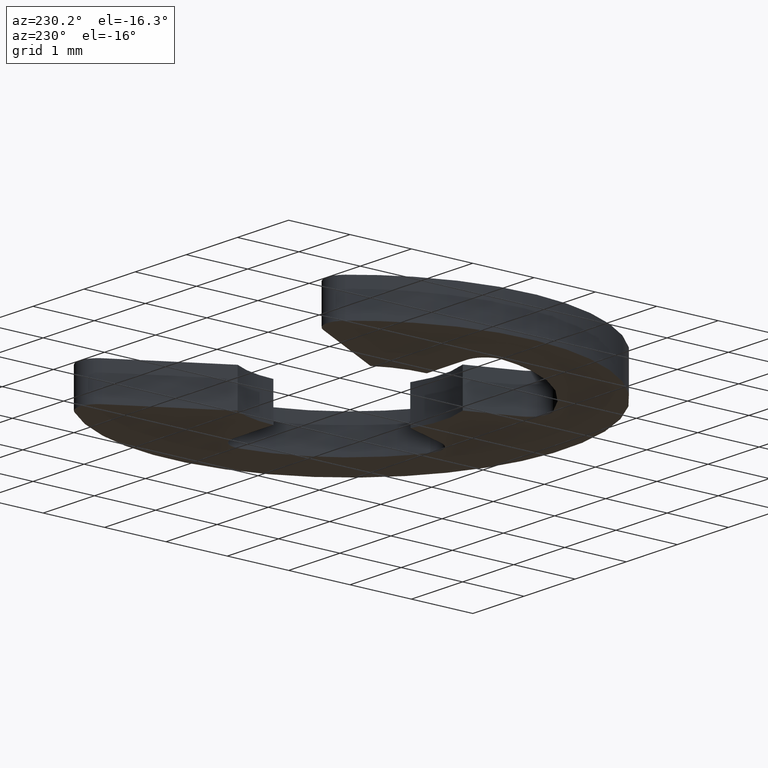
[diagram: clean part render]
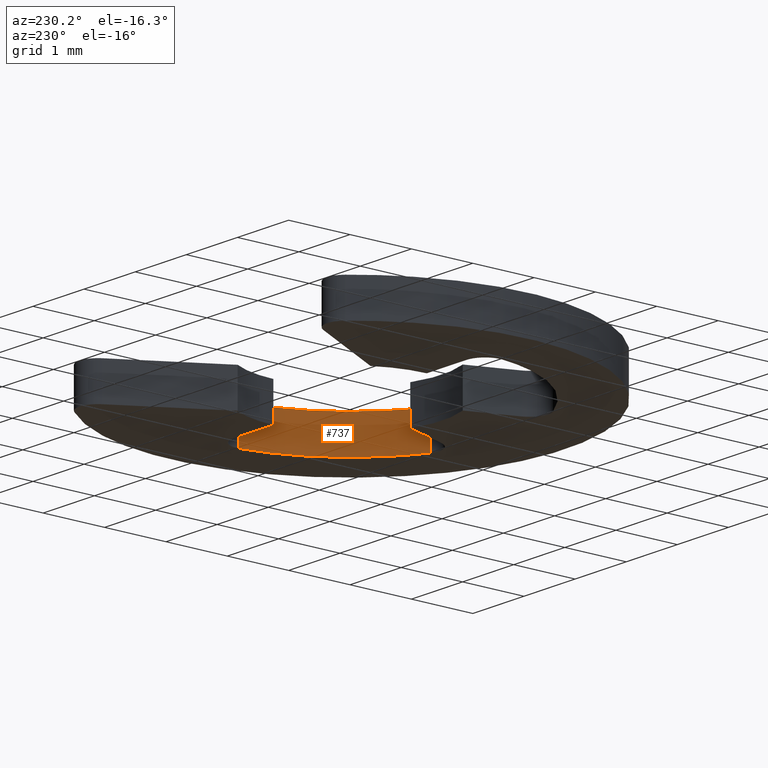
[diagram: same view with one face highlighted and labeled with its STEP entity id]
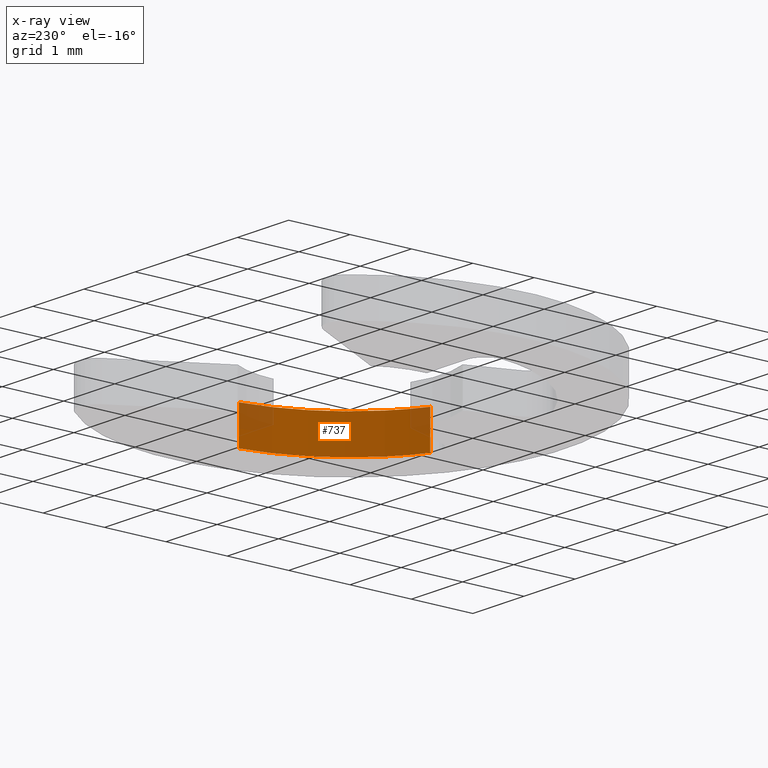
[diagram: x-ray of the same camera — body ghosted, the highlighted face saturated]
A machine part, auxiliary view. The second image highlights one B-rep face of the part: STEP entity #737.
The next image is the same camera in x-ray: the body ghosted, the highlighted face saturated — about 15% of this face is hidden behind the body in this view.
In plain terms, the highlighted face is a freeform B-spline surface patch.
Its self-contained STEP definition (entity closure, byte-faithful):
#151=CARTESIAN_POINT('',(1.200331538917840,-2.306340000233950,0.0));
#152=VERTEX_POINT('',#151);
#168=CARTESIAN_POINT('',(2.577787015822346,-0.339133826961695,0.0));
#169=VERTEX_POINT('',#168);
#170=CARTESIAN_POINT('',(2.577787015822346,-0.339133826961695,0.0));
#171=CARTESIAN_POINT('',(2.401205875392415,-1.681346573331909,0.0));
#172=CARTESIAN_POINT('',(1.200331538917840,-2.306340000233948,0.0));
#180=(BOUNDED_CURVE()B_SPLINE_CURVE(2,(#170,#171,#172),.UNSPECIFIED.,.F.,.U.)CURVE()GEOMETRIC_REPRESENTATION_ITEM()QUASI_UNIFORM_CURVE()RATIONAL_B_SPLINE_CURVE((1.0,0.886968343947677,1.0))REPRESENTATION_ITEM(''));
#181=EDGE_CURVE('',#169,#152,#180,.T.);
#401=CARTESIAN_POINT('',(2.577787015822346,-0.339133826961695,0.599990999999855));
#402=VERTEX_POINT('',#401);
#418=CARTESIAN_POINT('',(1.200331538917840,-2.306340000233950,0.599990999999855));
#419=VERTEX_POINT('',#418);
#420=CARTESIAN_POINT('',(2.577787015822346,-0.339133826961695,0.599990999999855));
#421=CARTESIAN_POINT('',(2.401205875392415,-1.681346573331909,0.599990999999855));
#422=CARTESIAN_POINT('',(1.200331538917840,-2.306340000233948,0.599990999999855));
#430=(BOUNDED_CURVE()B_SPLINE_CURVE(2,(#420,#421,#422),.UNSPECIFIED.,.F.,.U.)CURVE()GEOMETRIC_REPRESENTATION_ITEM()QUASI_UNIFORM_CURVE()RATIONAL_B_SPLINE_CURVE((1.0,0.886968343947677,1.0))REPRESENTATION_ITEM(''));
#431=EDGE_CURVE('',#402,#419,#430,.T.);
#705=CARTESIAN_POINT('',(1.200331538917840,-2.306340000233950,0.599990999999855));
#706=CARTESIAN_POINT('',(1.200331538917840,-2.306340000233950,0.0));
#707=QUASI_UNIFORM_CURVE('',1,(#705,#706),.UNSPECIFIED.,.F.,.U.);
#708=EDGE_CURVE('',#419,#152,#707,.T.);
#713=CARTESIAN_POINT('',(1.099021576261235,-2.356300399972861,0.614990774999852));
#714=CARTESIAN_POINT('',(1.099021576261235,-2.356300399972861,-0.015374769374996));
#715=CARTESIAN_POINT('',(2.463271923597063,-1.719989101480858,0.614990774999852));
#716=CARTESIAN_POINT('',(2.463271923597063,-1.719989101480858,-0.015374769374996));
#717=CARTESIAN_POINT('',(2.590671992103638,-0.220042335312464,0.614990774999852));
#718=CARTESIAN_POINT('',(2.590671992103638,-0.220042335312464,-0.015374769374996));
#726=(BOUNDED_SURFACE()B_SPLINE_SURFACE(1,2,((#713,#715,#717),(#714,#716,#718)),.UNSPECIFIED.,.F.,.F.,.U.)B_SPLINE_SURFACE_WITH_KNOTS((2,2),(3,3),(0.0,1.0),(0.0,2.793465149716901),.UNSPECIFIED.)GEOMETRIC_REPRESENTATION_ITEM()RATIONAL_B_SPLINE_SURFACE(((1.0,0.861649052300245,0.991317750291011),(1.0,0.861649052300245,0.991317750291011)))REPRESENTATION_ITEM('')SURFACE());
#727=ORIENTED_EDGE('',*,*,#181,.T.);
#728=ORIENTED_EDGE('',*,*,#708,.F.);
#729=ORIENTED_EDGE('',*,*,#431,.F.);
#730=CARTESIAN_POINT('',(2.577787015822346,-0.339133826961695,0.599990999999855));
#731=CARTESIAN_POINT('',(2.577787015822346,-0.339133826961695,0.0));
#732=QUASI_UNIFORM_CURVE('',1,(#730,#731),.UNSPECIFIED.,.F.,.U.);
#733=EDGE_CURVE('',#402,#169,#732,.T.);
#734=ORIENTED_EDGE('',*,*,#733,.T.);
#735=EDGE_LOOP('',(#727,#728,#729,#734));
#736=FACE_OUTER_BOUND('',#735,.T.);
#737=ADVANCED_FACE('',(#736),#726,.F.);